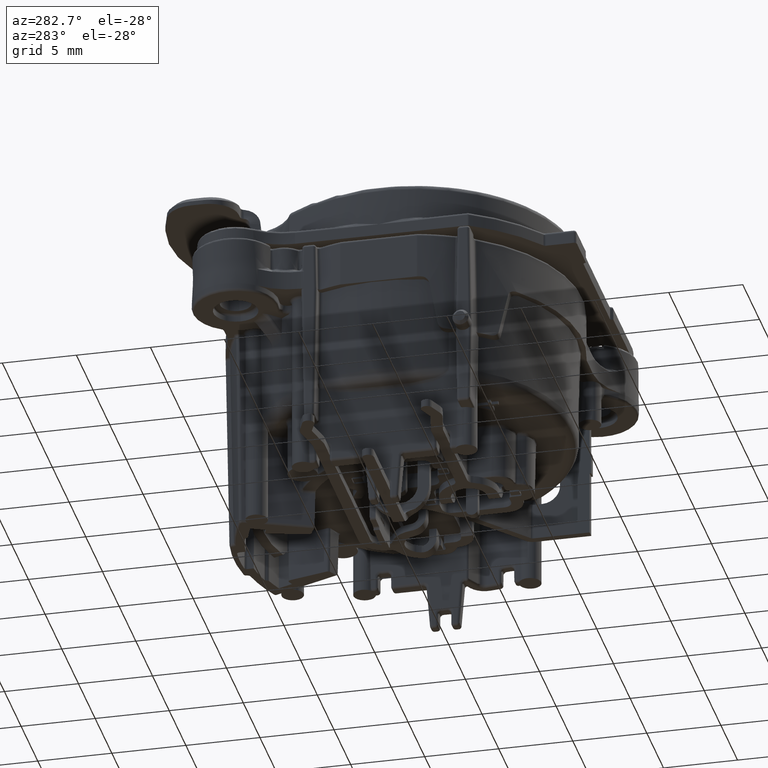
[diagram: clean part render]
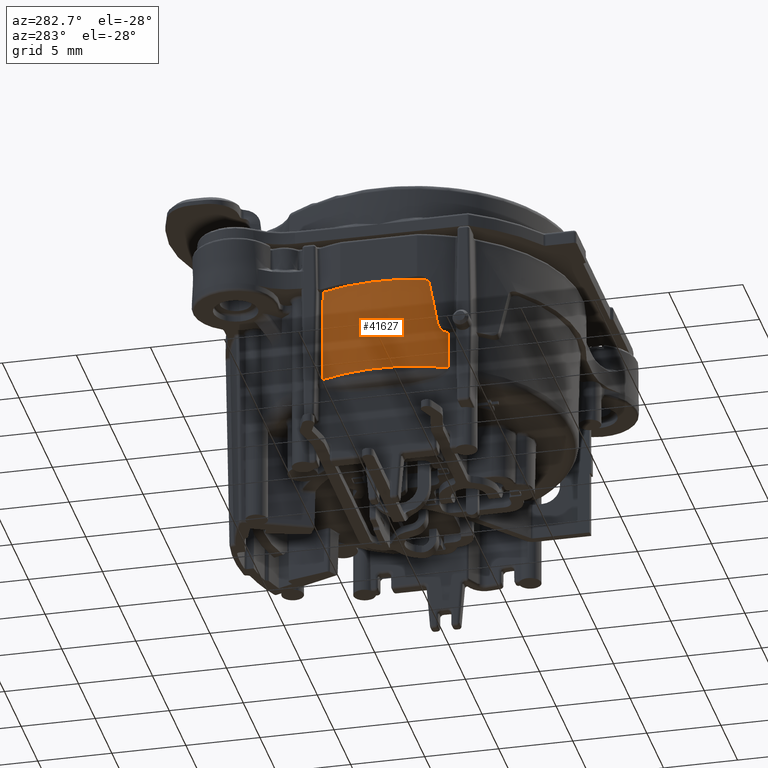
[diagram: same view with one face highlighted and labeled with its STEP entity id]
A machine part, auxiliary view. The second image highlights one B-rep face of the part: STEP entity #41627.
In plain terms, the highlighted conical surface has half-angle 1 deg.
Its self-contained STEP definition (entity closure, byte-faithful):
#1577=CARTESIAN_POINT('',(0.E0,0.E0,0.E0));
#1578=DIRECTION('',(0.E0,0.E0,1.E0));
#1579=DIRECTION('',(-9.328130793462E-1,3.603605957936E-1,0.E0));
#1580=AXIS2_PLACEMENT_3D('',#1577,#1578,#1579);
#1582=CARTESIAN_POINT('',(-1.051574435473E1,-2.868644395297E0,
3.789561257387E-14));
#1583=CARTESIAN_POINT('',(-1.050780206974E1,-2.897758857254E0,
3.789026433398E-14));
#1584=CARTESIAN_POINT('',(-1.049161998116E1,-2.955778750567E0,
-5.096674393892E-3));
#1585=CARTESIAN_POINT('',(-1.046718469244E1,-3.039735337749E0,
-2.752499722361E-2));
#1586=CARTESIAN_POINT('',(-1.044331768028E1,-3.118466612021E0,
-6.400474962479E-2));
#1587=CARTESIAN_POINT('',(-1.042082243305E1,-3.189814020225E0,
-1.135191719791E-1));
#1588=CARTESIAN_POINT('',(-1.040049029879E1,-3.251838013564E0,
-1.748753750193E-1));
#1589=CARTESIAN_POINT('',(-1.038315464855E1,-3.302584398766E0,
-2.464675048623E-1));
#1590=CARTESIAN_POINT('',(-1.036957049685E1,-3.340379292490E0,
-3.265309974715E-1));
#1591=CARTESIAN_POINT('',(-1.036349417206E1,-3.355887394033E0,
-3.839071607754E-1));
#1592=CARTESIAN_POINT('',(-1.036128296631E1,-3.361048264418E0,
-4.131759111666E-1));
#1594=CARTESIAN_POINT('',(-1.036128296631E1,-3.361048264418E0,
-4.131759111628E-1));
#1595=CARTESIAN_POINT('',(-1.028611486576E1,-3.536487761361E0,
-1.408142740622E0));
#1596=CARTESIAN_POINT('',(-1.020575424074E1,-3.711855345099E0,
-2.402701730026E0));
#1597=CARTESIAN_POINT('',(-1.011983453672E1,-3.887145939082E0,
-3.396824088829E0));
#1599=CARTESIAN_POINT('',(0.E0,0.E0,-3.81E0));
#1600=DIRECTION('',(0.E0,0.E0,1.E0));
#1601=DIRECTION('',(-9.146440862884E-1,-4.042600591421E-1,0.E0));
#1602=AXIS2_PLACEMENT_3D('',#1599,#1600,#1601);
#1604=DIRECTION('',(-1.742580099033E-2,-3.812537339835E-3,9.998408903515E-1));
#1605=VECTOR('',#1604,2.606996804513E0);
#1606=CARTESIAN_POINT('',(-9.833973021165E0,-4.435514081981E0,
-6.416582006168E0));
#1607=LINE('',#1606,#1605);
#1608=CARTESIAN_POINT('',(0.E0,0.E0,-6.416579786115E0));
#1609=DIRECTION('',(0.E0,0.E0,-1.E0));
#1610=DIRECTION('',(-9.115664238902E-1,-4.111528363467E-1,0.E0));
#1611=AXIS2_PLACEMENT_3D('',#1608,#1609,#1610);
#1613=CARTESIAN_POINT('',(-1.000409104474E1,4.037193282305E0,
-6.416537356132E0));
#1614=CARTESIAN_POINT('',(-1.002320551399E1,4.024531116041E0,
-5.672514704332E0));
#1615=CARTESIAN_POINT('',(-1.006079481902E1,3.999567109853E0,
-4.205569840326E0));
#1616=CARTESIAN_POINT('',(-1.011432599926E1,3.963809286715E0,
-2.104692951084E0));
#1617=CARTESIAN_POINT('',(-1.014998745447E1,3.939849479905E0,
-6.985005851550E-1));
#1618=CARTESIAN_POINT('',(-1.016765274503E1,3.927955909138E0,
5.376408722593E-8));
#11326=CARTESIAN_POINT('',(-1.016765274503E1,3.927955909138E0,
5.376408722593E-8));
#11379=CARTESIAN_POINT('',(-1.000409104474E1,4.037193282305E0,
-6.416537356132E0));
#30219=CARTESIAN_POINT('',(-9.908793235558E0,-4.379549815588E0,-3.81E0));
#30220=CARTESIAN_POINT('',(-9.930182577096E0,-4.331156128641E0,-3.81E0));
#30221=CARTESIAN_POINT('',(-9.971763003659E0,-4.235733447237E0,
-3.796000932943E0));
#30222=CARTESIAN_POINT('',(-1.002710013301E1,-4.105536471611E0,
-3.736072684396E0));
#30223=CARTESIAN_POINT('',(-1.007147707656E1,-3.999473299005E0,
-3.644737856426E0));
#30224=CARTESIAN_POINT('',(-1.010388364849E1,-3.922293046929E0,
-3.527500722101E0));
#30225=CARTESIAN_POINT('',(-1.011603523115E1,-3.894897159098E0,
-3.440783441986E0));
#30226=CARTESIAN_POINT('',(-1.011983453672E1,-3.887145939083E0,
-3.396824088833E0));
#35322=CARTESIAN_POINT('',(-9.833973021165E0,-4.435514081981E0,
-6.416582006168E0));
#35323=CARTESIAN_POINT('',(-9.879402028663E0,-4.445453354643E0,-3.81E0));
#35324=VERTEX_POINT('',#35322);
#35325=VERTEX_POINT('',#35323);
#35581=VERTEX_POINT('',#11379);
#35624=CARTESIAN_POINT('',(-9.908793235558E0,-4.379549815589E0,-3.81E0));
#35625=VERTEX_POINT('',#35624);
#35627=VERTEX_POINT('',#30226);
#35629=VERTEX_POINT('',#1594);
#35722=VERTEX_POINT('',#11326);
#35725=CARTESIAN_POINT('',(-1.051574435671E1,-2.868644387912E0,0.E0));
#35726=VERTEX_POINT('',#35725);
#41605=CARTESIAN_POINT('',(0.E0,0.E0,-3.208293964346E0));
#41606=DIRECTION('',(0.E0,0.E0,1.E0));
#41607=DIRECTION('',(0.E0,-1.E0,0.E0));
#41608=AXIS2_PLACEMENT_3D('',#41605,#41606,#41607);
#41609=CONICAL_SURFACE('',#41608,1.084399902054E1,1.E0);
#41610=ORIENTED_EDGE('',*,*,#40962,.T.);
#41612=ORIENTED_EDGE('',*,*,#41611,.T.);
#41614=ORIENTED_EDGE('',*,*,#41613,.T.);
#41616=ORIENTED_EDGE('',*,*,#41615,.F.);
#41618=ORIENTED_EDGE('',*,*,#41617,.T.);
#41620=ORIENTED_EDGE('',*,*,#41619,.F.);
#41622=ORIENTED_EDGE('',*,*,#41621,.T.);
#41624=ORIENTED_EDGE('',*,*,#41623,.T.);
#41625=EDGE_LOOP('',(#41610,#41612,#41614,#41616,#41618,#41620,#41622,#41624));
#41626=FACE_OUTER_BOUND('',#41625,.F.);
#1581=CIRCLE('',#1580,1.09E1);
#1593=B_SPLINE_CURVE_WITH_KNOTS('',3,(#1582,#1583,#1584,#1585,#1586,#1587,#1588,
#1589,#1590,#1591,#1592),.UNSPECIFIED.,.F.,.F.,(4,1,1,1,1,1,1,1,4),(0.E0,
1.25E-1,2.5E-1,3.75E-1,5.E-1,6.25E-1,7.5E-1,8.75E-1,1.E0),.UNSPECIFIED.);
#1598=B_SPLINE_CURVE_WITH_KNOTS('',3,(#1594,#1595,#1596,#1597),.UNSPECIFIED.,
.F.,.F.,(4,4),(0.E0,1.E0),.UNSPECIFIED.);
#1603=CIRCLE('',#1602,1.083349620262E1);
#1612=CIRCLE('',#1611,1.078799818322E1);
#1619=B_SPLINE_CURVE_WITH_KNOTS('',3,(#1613,#1614,#1615,#1616,#1617,#1618),
.UNSPECIFIED.,.F.,.F.,(4,1,1,4),(0.E0,3.333333333333E-1,6.666666666667E-1,1.E0),
.UNSPECIFIED.);
#30227=B_SPLINE_CURVE_WITH_KNOTS('',3,(#30219,#30220,#30221,#30222,#30223,
#30224,#30225,#30226),.UNSPECIFIED.,.F.,.F.,(4,1,1,1,1,4),(0.E0,2.E-1,4.E-1,
6.E-1,8.E-1,1.E0),.UNSPECIFIED.);
#40962=EDGE_CURVE('',#35722,#35726,#1581,.T.);
#41611=EDGE_CURVE('',#35726,#35629,#1593,.T.);
#41613=EDGE_CURVE('',#35629,#35627,#1598,.T.);
#41615=EDGE_CURVE('',#35625,#35627,#30227,.T.);
#41617=EDGE_CURVE('',#35625,#35325,#1603,.T.);
#41619=EDGE_CURVE('',#35324,#35325,#1607,.T.);
#41621=EDGE_CURVE('',#35324,#35581,#1612,.T.);
#41623=EDGE_CURVE('',#35581,#35722,#1619,.T.);
#41627=ADVANCED_FACE('',(#41626),#41609,.T.);